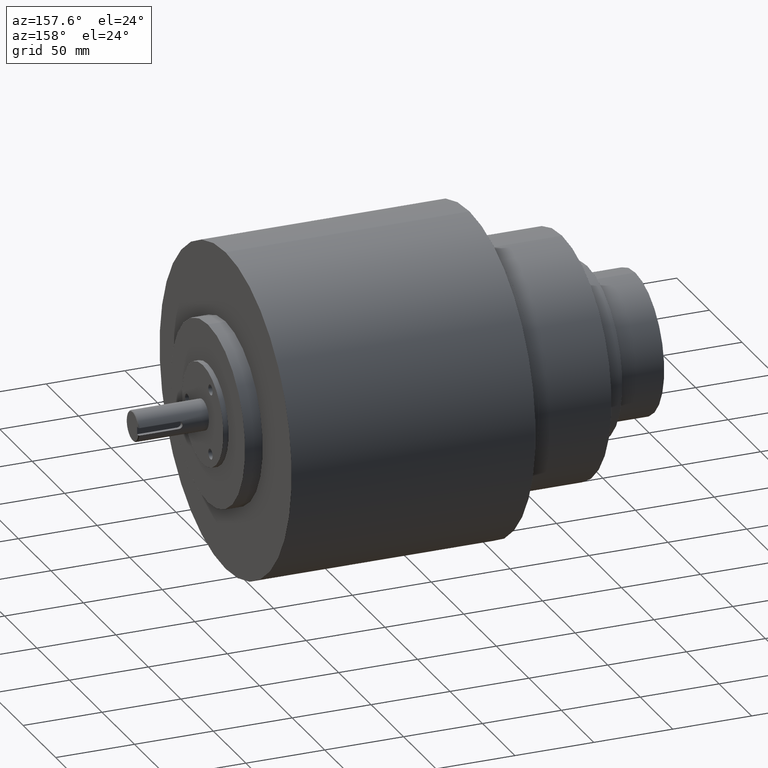
[diagram: clean part render]
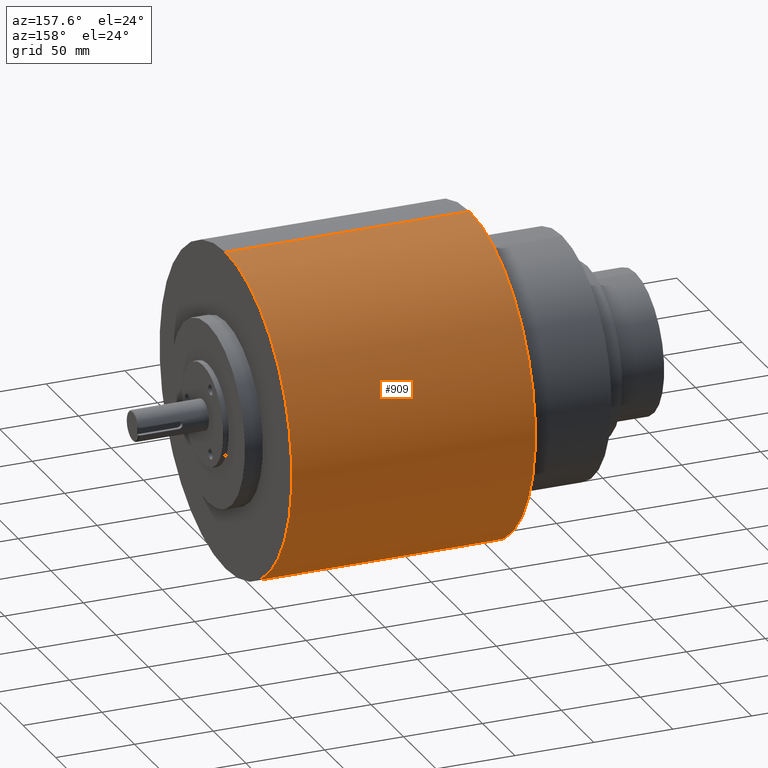
[diagram: same view with one face highlighted and labeled with its STEP entity id]
A machine part, auxiliary view. The second image highlights one B-rep face of the part: STEP entity #909.
In plain terms, the highlighted cylindrical surface (partial cylindrical patch) has radius 101.6 mm, axis along (-1, -0, -0).
Its self-contained STEP definition (entity closure, byte-faithful):
#4 = EDGE_CURVE ( 'NONE', #500, #498, #1321, .T. ) ;
#9 = EDGE_CURVE ( 'NONE', #499, #497, #1333, .T. ) ;
#302 = EDGE_LOOP ( 'NONE', ( #1000, #1001, #1002, #1003 ) ) ;
#497 = VERTEX_POINT ( 'NONE', #1931 ) ;
#498 = VERTEX_POINT ( 'NONE', #1932 ) ;
#499 = VERTEX_POINT ( 'NONE', #1933 ) ;
#500 = VERTEX_POINT ( 'NONE', #1934 ) ;
#596 = CARTESIAN_POINT ( 'NONE',  ( 21.54370849898476300, 4.898587196589411800E-016, -4.000000000000000000 ) ) ;
#599 = DIRECTION ( 'NONE',  ( -1.000000000000000000, -0.0000000000000000000, -0.0000000000000000000 ) ) ;
#605 = CARTESIAN_POINT ( 'NONE',  ( 21.54370849898476300, 0.0000000000000000000, 4.000000000000000000 ) ) ;
#611 = DIRECTION ( 'NONE',  ( -1.000000000000000000, -0.0000000000000000000, -0.0000000000000000000 ) ) ;
#837 = EDGE_CURVE ( 'NONE', #498, #497, #1546, .T. ) ;
#851 = EDGE_CURVE ( 'NONE', #499, #500, #1560, .T. ) ;
#909 = ADVANCED_FACE ( 'NONE', ( #2516 ), #2525, .T. ) ;
#1000 = ORIENTED_EDGE ( 'NONE', *, *, #851, .T. ) ;
#1001 = ORIENTED_EDGE ( 'NONE', *, *, #4, .T. ) ;
#1002 = ORIENTED_EDGE ( 'NONE', *, *, #837, .T. ) ;
#1003 = ORIENTED_EDGE ( 'NONE', *, *, #9, .F. ) ;
#1321 = LINE ( 'NONE', #596, #1325 ) ;
#1325 = VECTOR ( 'NONE', #599, 39.37007874015748100 ) ;
#1326 = VECTOR ( 'NONE', #611, 39.37007874015748100 ) ;
#1333 = LINE ( 'NONE', #605, #1326 ) ;
#1546 = CIRCLE ( 'NONE', #1652, 4.000000000000000000 ) ;
#1560 = CIRCLE ( 'NONE', #1666, 4.000000000000000000 ) ;
#1652 = AXIS2_PLACEMENT_3D ( 'NONE', #2077, #2078, #2079 ) ;
#1666 = AXIS2_PLACEMENT_3D ( 'NONE', #2119, #2120, #2121 ) ;
#1727 = AXIS2_PLACEMENT_3D ( 'NONE', #2289, #2288, #2284 ) ;
#1931 = CARTESIAN_POINT ( 'NONE',  ( 4.145000000000000500, 0.0000000000000000000, 4.000000000000000000 ) ) ;
#1932 = CARTESIAN_POINT ( 'NONE',  ( 4.145000000000000500, 4.898587196589411800E-016, -4.000000000000000000 ) ) ;
#1933 = CARTESIAN_POINT ( 'NONE',  ( 10.22500000000000100, 0.0000000000000000000, 4.000000000000000000 ) ) ;
#1934 = CARTESIAN_POINT ( 'NONE',  ( 10.22500000000000100, 4.898587196589411800E-016, -4.000000000000000000 ) ) ;
#2077 = CARTESIAN_POINT ( 'NONE',  ( 4.145000000000000500, 0.0000000000000000000, 0.0000000000000000000 ) ) ;
#2078 = DIRECTION ( 'NONE',  ( 1.000000000000000000, 0.0000000000000000000, 0.0000000000000000000 ) ) ;
#2079 = DIRECTION ( 'NONE',  ( 0.0000000000000000000, 0.0000000000000000000, -1.000000000000000000 ) ) ;
#2119 = CARTESIAN_POINT ( 'NONE',  ( 10.22500000000000100, 0.0000000000000000000, 0.0000000000000000000 ) ) ;
#2120 = DIRECTION ( 'NONE',  ( -1.000000000000000000, -0.0000000000000000000, -0.0000000000000000000 ) ) ;
#2121 = DIRECTION ( 'NONE',  ( 0.0000000000000000000, 0.0000000000000000000, -1.000000000000000000 ) ) ;
#2284 = DIRECTION ( 'NONE',  ( 0.0000000000000000000, 0.0000000000000000000, 1.000000000000000000 ) ) ;
#2288 = DIRECTION ( 'NONE',  ( -1.000000000000000000, -0.0000000000000000000, -0.0000000000000000000 ) ) ;
#2289 = CARTESIAN_POINT ( 'NONE',  ( 21.54370849898476300, 0.0000000000000000000, 0.0000000000000000000 ) ) ;
#2516 = FACE_OUTER_BOUND ( 'NONE', #302, .T. ) ;
#2525 = CYLINDRICAL_SURFACE ( 'NONE', #1727, 4.000000000000000000 ) ;